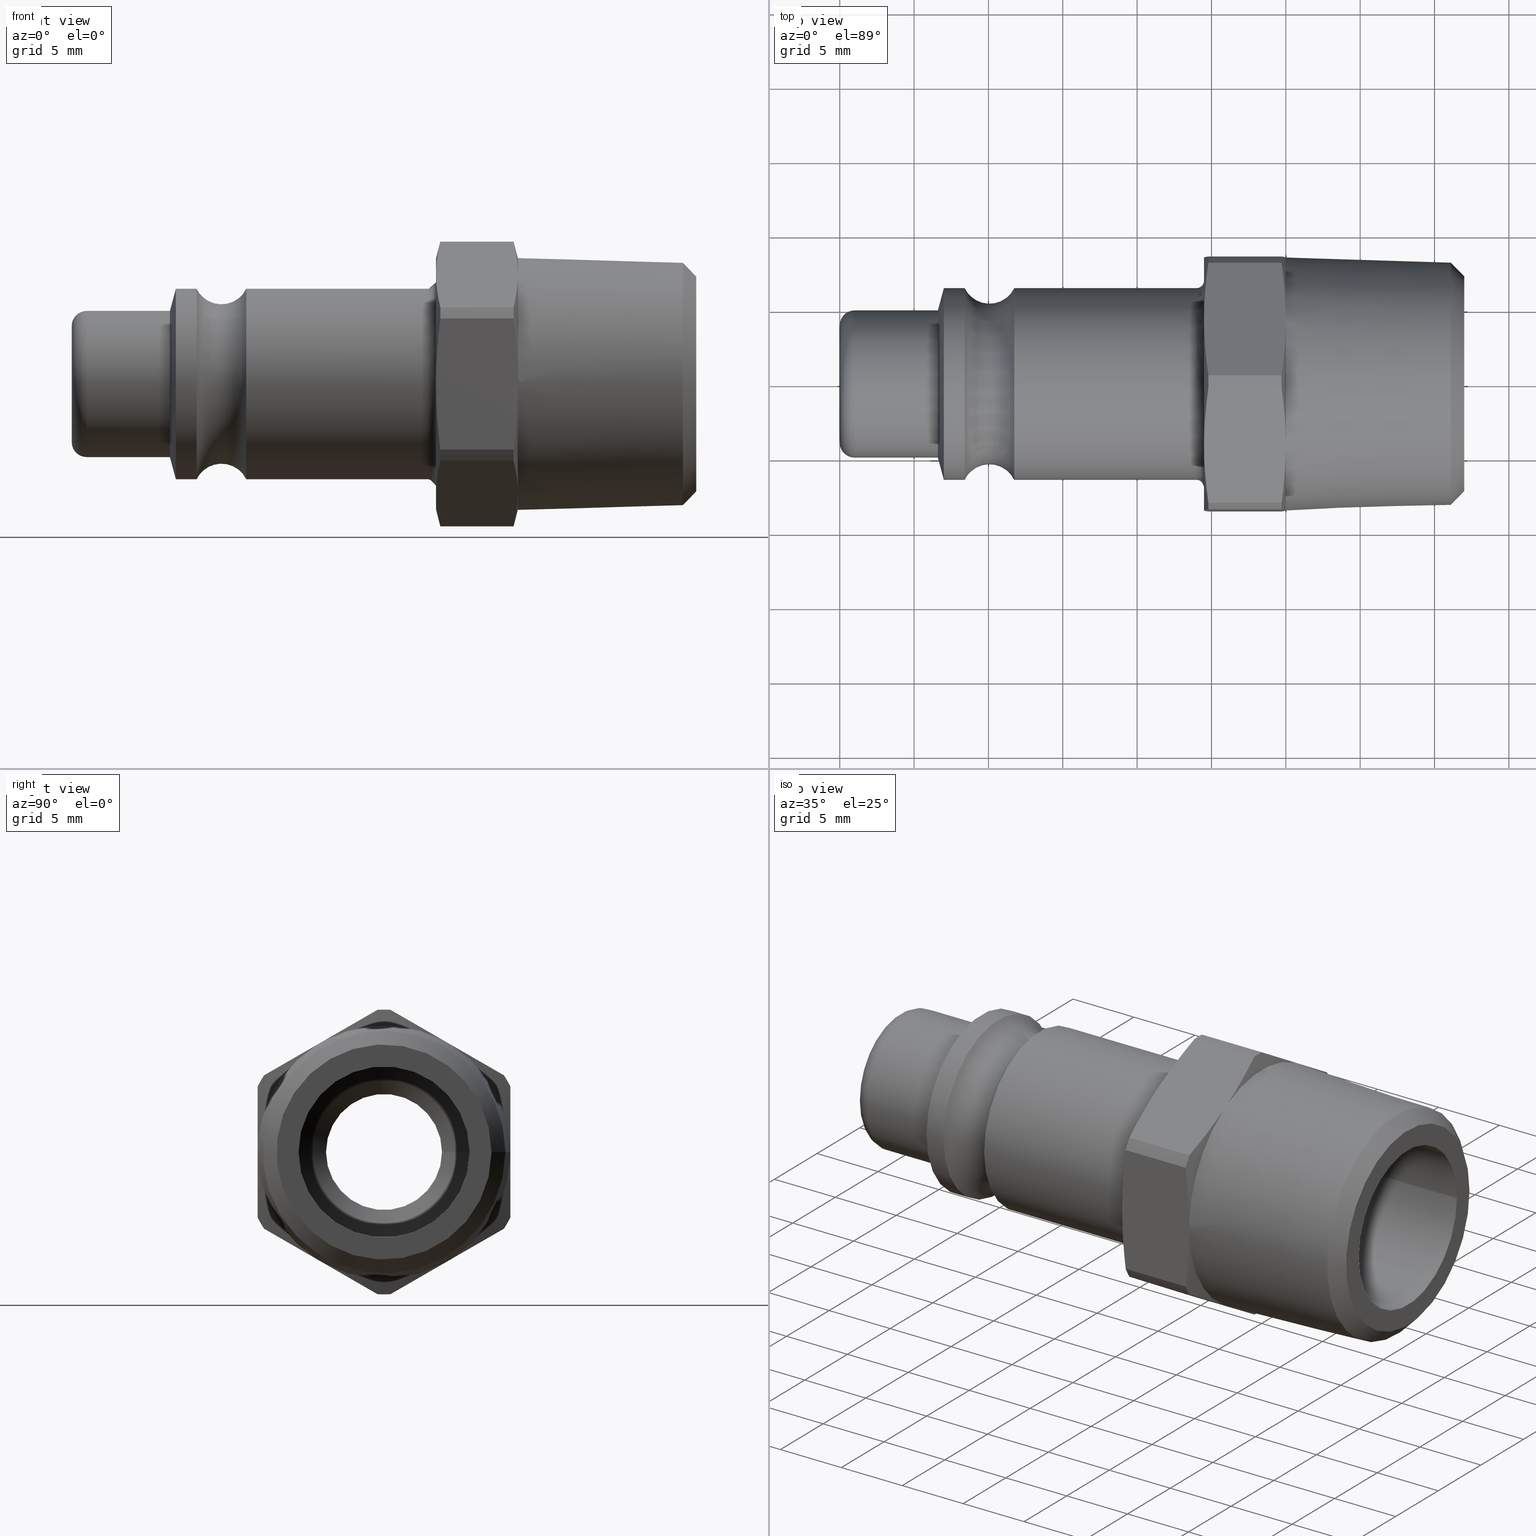
[diagram: canonical four-view strip — front | top / right | iso, engineering-drawing reading convention]
A machine part, canonical four-view strip (front | top / right | iso — engineering-drawing reading convention). The complete STEP part file that produces these views, byte-faithful:
ISO-10303-21;
HEADER;
/****************************************************************
 * Generated by software with PDElib inside                    *
 * PDElib Version v51a, created Wed 11/30/2011                  *
 * ITI Transcendata (http://www.transcendata.com/)              *
 ****************************************************************/
FILE_DESCRIPTION((''),'2;1');
FILE_NAME('J:\\3D Zeichnungen_step\\Serie 33\\33sfak17sxn.stp','2014-06-17T10:28:28',('IA176480'),(''),'Autodesk Inventor 2013','Autodesk Inventor 2013','');
FILE_SCHEMA(('AUTOMOTIVE_DESIGN { 1 0 10303 214 1 1 1 1 }'));
ENDSEC;
DATA;
#5=APPLICATION_CONTEXT('automotive design');
#6=APPLICATION_PROTOCOL_DEFINITION('International Standard','automotive_design',2001,#5);
#7=PRODUCT_CONTEXT('',#5,'mechanical');
#8=PRODUCT('D110730','D110730',$,(#7));
#9=PRODUCT_RELATED_PRODUCT_CATEGORY('part',$,(#8));
#10=PRODUCT_DEFINITION_FORMATION('',$,#8);
#11=PRODUCT_DEFINITION_CONTEXT('part definition',#5,'design');
#12=PRODUCT_DEFINITION('',$,#10,#11);
#18=(NAMED_UNIT(*)PLANE_ANGLE_UNIT()SI_UNIT($,.RADIAN.));
#19=DIMENSIONAL_EXPONENTS(0.0,0.0,0.0,0.0,0.0,0.0,0.0);
#20=PLANE_ANGLE_MEASURE_WITH_UNIT(PLANE_ANGLE_MEASURE(0.0174532925),#18);
#24=(CONVERSION_BASED_UNIT('DEGREE',#20)NAMED_UNIT(#19)PLANE_ANGLE_UNIT());
#28=(NAMED_UNIT(*)SI_UNIT($,.STERADIAN.)SOLID_ANGLE_UNIT());
#32=(LENGTH_UNIT()NAMED_UNIT(*)SI_UNIT(.MILLI.,.METRE.));
#34=UNCERTAINTY_MEASURE_WITH_UNIT(LENGTH_MEASURE(0.01),#32,'DISTANCE_ACCURACY_VALUE','');
#36=(GEOMETRIC_REPRESENTATION_CONTEXT(3)GLOBAL_UNCERTAINTY_ASSIGNED_CONTEXT((#34))GLOBAL_UNIT_ASSIGNED_CONTEXT((#24,#28,#32))REPRESENTATION_CONTEXT('None','None'));
#37=AXIS2_PLACEMENT_3D('',#38,#39,#40);
#38=CARTESIAN_POINT('',(0.0,0.0,0.0));
#39=DIRECTION('',(0.0,0.0,1.0));
#40=DIRECTION('',(1.0,0.0,0.0));
#41=SHAPE_REPRESENTATION('',(#37),#36);
#42=PRODUCT_DEFINITION_SHAPE('','',#12);
#43=SHAPE_DEFINITION_REPRESENTATION(#42,#41);
#49=(NAMED_UNIT(*)PLANE_ANGLE_UNIT()SI_UNIT($,.RADIAN.));
#50=DIMENSIONAL_EXPONENTS(0.0,0.0,0.0,0.0,0.0,0.0,0.0);
#51=PLANE_ANGLE_MEASURE_WITH_UNIT(PLANE_ANGLE_MEASURE(0.0174532925),#49);
#55=(CONVERSION_BASED_UNIT('DEGREE',#51)NAMED_UNIT(#50)PLANE_ANGLE_UNIT());
#59=(NAMED_UNIT(*)SI_UNIT($,.STERADIAN.)SOLID_ANGLE_UNIT());
#63=(LENGTH_UNIT()NAMED_UNIT(*)SI_UNIT(.MILLI.,.METRE.));
#65=UNCERTAINTY_MEASURE_WITH_UNIT(LENGTH_MEASURE(0.000001),#63,'DISTANCE_ACCURACY_VALUE','');
#67=(GEOMETRIC_REPRESENTATION_CONTEXT(3)GLOBAL_UNCERTAINTY_ASSIGNED_CONTEXT((#65))GLOBAL_UNIT_ASSIGNED_CONTEXT((#55,#59,#63))REPRESENTATION_CONTEXT('','3D'));
#68=CARTESIAN_POINT('',(1.0,0.0,0.0));
#69=DIRECTION('',(1.0,0.0,0.0));
#70=DIRECTION('',(0.0,0.0,-1.0));
#71=AXIS2_PLACEMENT_3D('',#68,#69,#70);
#72=TOROIDAL_SURFACE('',#71,3.950000000000001,1.0);
#73=CARTESIAN_POINT('',(-5.551115E-016,3.950000000000001,0.0));
#74=VERTEX_POINT('',#73);
#75=CARTESIAN_POINT('',(-5.551115E-016,0.0,0.0));
#76=DIRECTION('',(1.0,0.0,0.0));
#77=DIRECTION('',(0.0,-1.0,0.0));
#78=AXIS2_PLACEMENT_3D('',#75,#76,#77);
#79=CIRCLE('',#78,3.950000000000001);
#80=EDGE_CURVE('',#74,#74,#79,.T.);
#81=ORIENTED_EDGE('',*,*,#80,.T.);
#82=EDGE_LOOP('',(#81));
#83=FACE_OUTER_BOUND('',#82,.T.);
#84=CARTESIAN_POINT('',(1.0,4.950000000000001,-1.212400E-015));
#85=VERTEX_POINT('',#84);
#86=CARTESIAN_POINT('',(1.0,0.0,0.0));
#87=DIRECTION('',(-1.0,0.0,0.0));
#88=DIRECTION('',(0.0,-1.0,0.0));
#89=AXIS2_PLACEMENT_3D('',#86,#87,#88);
#90=CIRCLE('',#89,4.950000000000001);
#91=EDGE_CURVE('',#85,#85,#90,.T.);
#92=ORIENTED_EDGE('',*,*,#91,.T.);
#93=EDGE_LOOP('',(#92));
#94=FACE_BOUND('',#93,.T.);
#95=ADVANCED_FACE('',(#83,#94),#72,.T.);
#96=CARTESIAN_POINT('',(3.299999999999999,0.0,0.0));
#97=DIRECTION('',(1.0,0.0,0.0));
#98=DIRECTION('',(0.0,1.0,0.0));
#99=AXIS2_PLACEMENT_3D('',#96,#97,#98);
#100=CYLINDRICAL_SURFACE('',#99,4.950000000000001);
#101=CARTESIAN_POINT('',(6.6,4.950000000000002,0.0));
#102=VERTEX_POINT('',#101);
#103=CARTESIAN_POINT('',(6.6,0.0,0.0));
#104=DIRECTION('',(1.0,0.0,0.0));
#105=DIRECTION('',(0.0,1.0,0.0));
#106=AXIS2_PLACEMENT_3D('',#103,#104,#105);
#107=CIRCLE('',#106,4.950000000000002);
#108=EDGE_CURVE('',#102,#102,#107,.T.);
#109=ORIENTED_EDGE('',*,*,#108,.F.);
#110=EDGE_LOOP('',(#109));
#111=FACE_OUTER_BOUND('',#110,.T.);
#112=ORIENTED_EDGE('',*,*,#91,.F.);
#113=EDGE_LOOP('',(#112));
#114=FACE_BOUND('',#113,.T.);
#115=ADVANCED_FACE('',(#111,#114),#100,.T.);
#116=CARTESIAN_POINT('',(-5.551115E-016,4.424999999999998,0.0));
#117=DIRECTION('',(-1.0,0.0,0.0));
#118=DIRECTION('',(0.0,0.0,1.0));
#119=AXIS2_PLACEMENT_3D('',#116,#117,#118);
#120=PLANE('',#119);
#121=ORIENTED_EDGE('',*,*,#80,.F.);
#122=EDGE_LOOP('',(#121));
#123=FACE_OUTER_BOUND('',#122,.T.);
#124=CARTESIAN_POINT('',(0.0,3.899999999999995,0.0));
#125=VERTEX_POINT('',#124);
#126=CARTESIAN_POINT('',(0.0,0.0,0.0));
#127=DIRECTION('',(1.0,0.0,0.0));
#128=DIRECTION('',(0.0,1.0,0.0));
#129=AXIS2_PLACEMENT_3D('',#126,#127,#128);
#130=CIRCLE('',#129,3.899999999999995);
#131=EDGE_CURVE('',#125,#125,#130,.T.);
#132=ORIENTED_EDGE('',*,*,#131,.T.);
#133=EDGE_LOOP('',(#132));
#134=FACE_BOUND('',#133,.T.);
#135=ADVANCED_FACE('',(#123,#134),#120,.T.);
#136=CARTESIAN_POINT('',(24.000000000000004,0.0,0.0));
#137=DIRECTION('',(1.0,0.0,0.0));
#138=DIRECTION('',(0.0,0.0,-1.0));
#139=AXIS2_PLACEMENT_3D('',#136,#137,#138);
#140=TOROIDAL_SURFACE('',#139,6.950000000000001,0.5);
#141=CARTESIAN_POINT('',(24.000000000000004,6.45,0.0));
#142=VERTEX_POINT('',#141);
#143=CARTESIAN_POINT('',(24.000000000000004,0.0,0.0));
#144=DIRECTION('',(1.0,0.0,0.0));
#145=DIRECTION('',(0.0,-1.0,0.0));
#146=AXIS2_PLACEMENT_3D('',#143,#144,#145);
#147=CIRCLE('',#146,6.45);
#148=EDGE_CURVE('',#142,#142,#147,.T.);
#149=ORIENTED_EDGE('',*,*,#148,.T.);
#150=EDGE_LOOP('',(#149));
#151=FACE_OUTER_BOUND('',#150,.T.);
#152=CARTESIAN_POINT('',(24.5,6.950000000000001,-1.702259E-015));
#153=VERTEX_POINT('',#152);
#154=CARTESIAN_POINT('',(24.5,0.0,0.0));
#155=DIRECTION('',(-1.0,0.0,0.0));
#156=DIRECTION('',(0.0,-1.0,0.0));
#157=AXIS2_PLACEMENT_3D('',#154,#155,#156);
#158=CIRCLE('',#157,6.950000000000001);
#159=EDGE_CURVE('',#153,#153,#158,.T.);
#160=ORIENTED_EDGE('',*,*,#159,.T.);
#161=EDGE_LOOP('',(#160));
#162=FACE_BOUND('',#161,.T.);
#163=ADVANCED_FACE('',(#151,#162),#140,.F.);
#164=CARTESIAN_POINT('',(18.118082731761227,0.0,0.0));
#165=DIRECTION('',(1.0,0.0,0.0));
#166=DIRECTION('',(0.0,1.0,0.0));
#167=AXIS2_PLACEMENT_3D('',#164,#165,#166);
#168=CYLINDRICAL_SURFACE('',#167,6.45);
#169=CARTESIAN_POINT('',(11.736165463522454,6.449999999999999,0.0));
#170=VERTEX_POINT('',#169);
#171=CARTESIAN_POINT('',(11.736165463522454,0.0,0.0));
#172=DIRECTION('',(1.0,0.0,0.0));
#173=DIRECTION('',(0.0,1.0,0.0));
#174=AXIS2_PLACEMENT_3D('',#171,#172,#173);
#175=CIRCLE('',#174,6.449999999999999);
#176=EDGE_CURVE('',#170,#170,#175,.T.);
#177=ORIENTED_EDGE('',*,*,#176,.T.);
#178=EDGE_LOOP('',(#177));
#179=FACE_OUTER_BOUND('',#178,.T.);
#180=ORIENTED_EDGE('',*,*,#148,.F.);
#181=EDGE_LOOP('',(#180));
#182=FACE_BOUND('',#181,.T.);
#183=ADVANCED_FACE('',(#179,#182),#168,.T.);
#184=CARTESIAN_POINT('',(24.5,7.475000000000001,0.0));
#185=DIRECTION('',(-1.0,0.0,0.0));
#186=DIRECTION('',(0.0,0.0,1.0));
#187=AXIS2_PLACEMENT_3D('',#184,#185,#186);
#188=PLANE('',#187);
#189=CARTESIAN_POINT('',(24.5,8.5,0.0));
#190=VERTEX_POINT('',#189);
#191=CARTESIAN_POINT('',(24.5,4.250000000000001,7.361215932167728));
#192=VERTEX_POINT('',#191);
#193=CARTESIAN_POINT('',(24.5,0.0,0.0));
#194=DIRECTION('',(1.0,0.0,0.0));
#195=DIRECTION('',(0.0,1.0,0.0));
#196=AXIS2_PLACEMENT_3D('',#193,#194,#195);
#197=CIRCLE('',#196,8.5);
#198=EDGE_CURVE('',#190,#192,#197,.T.);
#199=ORIENTED_EDGE('',*,*,#198,.F.);
#200=CARTESIAN_POINT('',(24.5,4.249999999999994,-7.361215932167733));
#201=VERTEX_POINT('',#200);
#202=CARTESIAN_POINT('',(24.5,0.0,0.0));
#203=DIRECTION('',(1.0,0.0,0.0));
#204=DIRECTION('',(0.0,1.0,0.0));
#205=AXIS2_PLACEMENT_3D('',#202,#203,#204);
#206=CIRCLE('',#205,8.5);
#207=EDGE_CURVE('',#201,#190,#206,.T.);
#208=ORIENTED_EDGE('',*,*,#207,.F.);
#209=CARTESIAN_POINT('',(24.5,-4.250000000000004,-7.361215932167728));
#210=VERTEX_POINT('',#209);
#211=CARTESIAN_POINT('',(24.5,0.0,0.0));
#212=DIRECTION('',(1.0,0.0,0.0));
#213=DIRECTION('',(0.0,1.0,0.0));
#214=AXIS2_PLACEMENT_3D('',#211,#212,#213);
#215=CIRCLE('',#214,8.5);
#216=EDGE_CURVE('',#210,#201,#215,.T.);
#217=ORIENTED_EDGE('',*,*,#216,.F.);
#218=CARTESIAN_POINT('',(24.5,-8.5,1.415534E-015));
#219=VERTEX_POINT('',#218);
#220=CARTESIAN_POINT('',(24.5,0.0,0.0));
#221=DIRECTION('',(1.0,0.0,0.0));
#222=DIRECTION('',(0.0,1.0,0.0));
#223=AXIS2_PLACEMENT_3D('',#220,#221,#222);
#224=CIRCLE('',#223,8.5);
#225=EDGE_CURVE('',#219,#210,#224,.T.);
#226=ORIENTED_EDGE('',*,*,#225,.F.);
#227=CARTESIAN_POINT('',(24.5,-4.249999999999998,7.361215932167731));
#228=VERTEX_POINT('',#227);
#229=CARTESIAN_POINT('',(24.5,0.0,0.0));
#230=DIRECTION('',(1.0,0.0,0.0));
#231=DIRECTION('',(0.0,1.0,0.0));
#232=AXIS2_PLACEMENT_3D('',#229,#230,#231);
#233=CIRCLE('',#232,8.5);
#234=EDGE_CURVE('',#228,#219,#233,.T.);
#235=ORIENTED_EDGE('',*,*,#234,.F.);
#236=CARTESIAN_POINT('',(24.5,0.0,0.0));
#237=DIRECTION('',(1.0,0.0,0.0));
#238=DIRECTION('',(0.0,1.0,0.0));
#239=AXIS2_PLACEMENT_3D('',#236,#237,#238);
#240=CIRCLE('',#239,8.5);
#241=EDGE_CURVE('',#192,#228,#240,.T.);
#242=ORIENTED_EDGE('',*,*,#241,.F.);
#243=EDGE_LOOP('',(#199,#208,#217,#226,#235,#242));
#244=FACE_OUTER_BOUND('',#243,.T.);
#245=ORIENTED_EDGE('',*,*,#159,.F.);
#246=EDGE_LOOP('',(#245));
#247=FACE_BOUND('',#246,.T.);
#248=ADVANCED_FACE('',(#244,#247),#188,.T.);
#249=CARTESIAN_POINT('',(41.550217141247067,0.0,-2.498299E-016));
#250=DIRECTION('',(-1.0,0.0,-5.554456E-016));
#251=DIRECTION('',(0.0,-1.0,0.0));
#252=AXIS2_PLACEMENT_3D('',#249,#250,#251);
#253=CONICAL_SURFACE('',#252,7.696086437542533,45.890000000000065);
#254=CARTESIAN_POINT('',(41.100434282494128,8.160064276146372,9.993197E-016));
#255=VERTEX_POINT('',#254);
#256=CARTESIAN_POINT('',(41.100434282494128,0.0,-4.996598E-016));
#257=DIRECTION('',(1.0,0.0,0.0));
#258=DIRECTION('',(0.0,-1.0,0.0));
#259=AXIS2_PLACEMENT_3D('',#256,#257,#258);
#260=CIRCLE('',#259,8.160064276146372);
#261=EDGE_CURVE('',#255,#255,#260,.T.);
#262=ORIENTED_EDGE('',*,*,#261,.T.);
#263=EDGE_LOOP('',(#262));
#264=FACE_OUTER_BOUND('',#263,.T.);
#265=CARTESIAN_POINT('',(42.0,7.232108598938694,-8.856779E-016));
#266=VERTEX_POINT('',#265);
#267=CARTESIAN_POINT('',(42.0,0.0,0.0));
#268=DIRECTION('',(-1.0,0.0,0.0));
#269=DIRECTION('',(0.0,-1.0,0.0));
#270=AXIS2_PLACEMENT_3D('',#267,#268,#269);
#271=CIRCLE('',#270,7.232108598938694);
#272=EDGE_CURVE('',#266,#266,#271,.T.);
#273=ORIENTED_EDGE('',*,*,#272,.T.);
#274=EDGE_LOOP('',(#273));
#275=FACE_BOUND('',#274,.T.);
#276=ADVANCED_FACE('',(#264,#275),#253,.T.);
#277=CARTESIAN_POINT('',(36.0,0.0,0.0));
#278=DIRECTION('',(-1.0,0.0,0.0));
#279=DIRECTION('',(0.0,1.0,0.0));
#280=AXIS2_PLACEMENT_3D('',#277,#278,#279);
#281=CONICAL_SURFACE('',#280,8.318569754562908,1.779999999999987);
#282=CARTESIAN_POINT('',(30.0,3.996695662435906,-7.507461259647259));
#283=VERTEX_POINT('',#282);
#284=CARTESIAN_POINT('',(30.0,4.503304337564082,-7.214970604688206));
#285=VERTEX_POINT('',#284);
#286=CARTESIAN_POINT('',(30.0,3.996695662435963,-7.507461259647227));
#287=CARTESIAN_POINT('',(30.323676353333006,4.249999999999996,-7.361215932167734));
#288=CARTESIAN_POINT('',(30.0,4.503304337564027,-7.214970604688241));
#296=(BOUNDED_CURVE()B_SPLINE_CURVE(2,(#286,#287,#288),.UNSPECIFIED.,.F.,.U.)B_SPLINE_CURVE_WITH_KNOTS((3,3),(0.0,0.066860415325555),.UNSPECIFIED.)CURVE()GEOMETRIC_REPRESENTATION_ITEM()RATIONAL_B_SPLINE_CURVE((1.0,1.000591871786538,1.0))REPRESENTATION_ITEM(''));
#297=EDGE_CURVE('',#283,#285,#296,.T.);
#298=ORIENTED_EDGE('',*,*,#297,.T.);
#299=CARTESIAN_POINT('',(30.0,8.5,-0.292490654959052));
#300=VERTEX_POINT('',#299);
#301=CARTESIAN_POINT('',(30.0,0.0,0.0));
#302=DIRECTION('',(1.0,0.0,0.0));
#303=DIRECTION('',(0.0,1.0,0.0));
#304=AXIS2_PLACEMENT_3D('',#301,#302,#303);
#305=CIRCLE('',#304,8.505030910187122);
#306=EDGE_CURVE('',#285,#300,#305,.T.);
#307=ORIENTED_EDGE('',*,*,#306,.T.);
#308=CARTESIAN_POINT('',(30.0,8.5,0.292490654959052));
#309=VERTEX_POINT('',#308);
#310=CARTESIAN_POINT('',(30.0,8.5,-0.292490654959026));
#311=CARTESIAN_POINT('',(30.323676353333092,8.5,0.0));
#312=CARTESIAN_POINT('',(30.0,8.5,0.292490654959026));
#320=(BOUNDED_CURVE()B_SPLINE_CURVE(2,(#310,#311,#312),.UNSPECIFIED.,.F.,.U.)B_SPLINE_CURVE_WITH_KNOTS((3,3),(0.0,0.066860415325569),.UNSPECIFIED.)CURVE()GEOMETRIC_REPRESENTATION_ITEM()RATIONAL_B_SPLINE_CURVE((1.0,1.000591871786813,1.0))REPRESENTATION_ITEM(''));
#321=EDGE_CURVE('',#300,#309,#320,.T.);
#322=ORIENTED_EDGE('',*,*,#321,.T.);
#323=CARTESIAN_POINT('',(30.0,4.503304337564089,7.214970604688203));
#324=VERTEX_POINT('',#323);
#325=CARTESIAN_POINT('',(30.0,0.0,0.0));
#326=DIRECTION('',(1.0,0.0,0.0));
#327=DIRECTION('',(0.0,1.0,0.0));
#328=AXIS2_PLACEMENT_3D('',#325,#326,#327);
#329=CIRCLE('',#328,8.505030910187122);
#330=EDGE_CURVE('',#309,#324,#329,.T.);
#331=ORIENTED_EDGE('',*,*,#330,.T.);
#332=CARTESIAN_POINT('',(30.0,3.996695662435914,7.507461259647254));
#333=VERTEX_POINT('',#332);
#334=CARTESIAN_POINT('',(30.0,4.503304337564084,7.214970604688205));
#335=CARTESIAN_POINT('',(30.323676353333134,4.250000000000002,7.361215932167728));
#336=CARTESIAN_POINT('',(30.0,3.996695662435919,7.507461259647251));
#344=(BOUNDED_CURVE()B_SPLINE_CURVE(2,(#334,#335,#336),.UNSPECIFIED.,.F.,.U.)B_SPLINE_CURVE_WITH_KNOTS((3,3),(0.0,0.066860415325572),.UNSPECIFIED.)CURVE()GEOMETRIC_REPRESENTATION_ITEM()RATIONAL_B_SPLINE_CURVE((1.0,1.000591871786565,1.0))REPRESENTATION_ITEM(''));
#345=EDGE_CURVE('',#324,#333,#344,.T.);
#346=ORIENTED_EDGE('',*,*,#345,.T.);
#347=CARTESIAN_POINT('',(30.0,-3.996695662435911,7.507461259647257));
#348=VERTEX_POINT('',#347);
#349=CARTESIAN_POINT('',(30.0,0.0,0.0));
#350=DIRECTION('',(1.0,0.0,0.0));
#351=DIRECTION('',(0.0,1.0,0.0));
#352=AXIS2_PLACEMENT_3D('',#349,#350,#351);
#353=CIRCLE('',#352,8.505030910187122);
#354=EDGE_CURVE('',#333,#348,#353,.T.);
#355=ORIENTED_EDGE('',*,*,#354,.T.);
#356=CARTESIAN_POINT('',(30.0,-4.503304337564086,7.214970604688205));
#357=VERTEX_POINT('',#356);
#358=CARTESIAN_POINT('',(30.0,-3.996695662435934,7.507461259647243));
#359=CARTESIAN_POINT('',(30.323676353333088,-4.25,7.361215932167731));
#360=CARTESIAN_POINT('',(30.0,-4.503304337564065,7.214970604688218));
#368=(BOUNDED_CURVE()B_SPLINE_CURVE(2,(#358,#359,#360),.UNSPECIFIED.,.F.,.U.)B_SPLINE_CURVE_WITH_KNOTS((3,3),(0.0,0.066860415325565),.UNSPECIFIED.)CURVE()GEOMETRIC_REPRESENTATION_ITEM()RATIONAL_B_SPLINE_CURVE((1.0,1.000591871786401,1.0))REPRESENTATION_ITEM(''));
#369=EDGE_CURVE('',#348,#357,#368,.T.);
#370=ORIENTED_EDGE('',*,*,#369,.T.);
#371=CARTESIAN_POINT('',(30.0,-8.5,0.292490654959053));
#372=VERTEX_POINT('',#371);
#373=CARTESIAN_POINT('',(30.0,0.0,0.0));
#374=DIRECTION('',(1.0,0.0,0.0));
#375=DIRECTION('',(0.0,1.0,0.0));
#376=AXIS2_PLACEMENT_3D('',#373,#374,#375);
#377=CIRCLE('',#376,8.505030910187122);
#378=EDGE_CURVE('',#357,#372,#377,.T.);
#379=ORIENTED_EDGE('',*,*,#378,.T.);
#380=CARTESIAN_POINT('',(30.0,-8.5,-0.29249065495905));
#381=VERTEX_POINT('',#380);
#382=CARTESIAN_POINT('',(30.0,-8.5,0.292490654959028));
#383=CARTESIAN_POINT('',(30.323676353333092,-8.5,1.422473E-015));
#384=CARTESIAN_POINT('',(30.0,-8.5,-0.292490654959025));
#392=(BOUNDED_CURVE()B_SPLINE_CURVE(2,(#382,#383,#384),.UNSPECIFIED.,.F.,.U.)B_SPLINE_CURVE_WITH_KNOTS((3,3),(0.0,0.066860415325569),.UNSPECIFIED.)CURVE()GEOMETRIC_REPRESENTATION_ITEM()RATIONAL_B_SPLINE_CURVE((1.0,1.000591871786813,1.0))REPRESENTATION_ITEM(''));
#393=EDGE_CURVE('',#372,#381,#392,.T.);
#394=ORIENTED_EDGE('',*,*,#393,.T.);
#395=CARTESIAN_POINT('',(30.0,-4.503304337564092,-7.214970604688201));
#396=VERTEX_POINT('',#395);
#397=CARTESIAN_POINT('',(30.0,0.0,0.0));
#398=DIRECTION('',(1.0,0.0,0.0));
#399=DIRECTION('',(0.0,1.0,0.0));
#400=AXIS2_PLACEMENT_3D('',#397,#398,#399);
#401=CIRCLE('',#400,8.505030910187122);
#402=EDGE_CURVE('',#381,#396,#401,.T.);
#403=ORIENTED_EDGE('',*,*,#402,.T.);
#404=CARTESIAN_POINT('',(30.0,-3.996695662435917,-7.507461259647253));
#405=VERTEX_POINT('',#404);
#406=CARTESIAN_POINT('',(30.0,-4.50330433756407,-7.214970604688214));
#407=CARTESIAN_POINT('',(30.323676353333088,-4.250000000000005,-7.361215932167728));
#408=CARTESIAN_POINT('',(30.0,-3.996695662435939,-7.50746125964724));
#416=(BOUNDED_CURVE()B_SPLINE_CURVE(2,(#406,#407,#408),.UNSPECIFIED.,.F.,.U.)B_SPLINE_CURVE_WITH_KNOTS((3,3),(0.0,0.066860415325568),.UNSPECIFIED.)CURVE()GEOMETRIC_REPRESENTATION_ITEM()RATIONAL_B_SPLINE_CURVE((1.0,1.00059187178673,1.0))REPRESENTATION_ITEM(''));
#417=EDGE_CURVE('',#396,#405,#416,.T.);
#418=ORIENTED_EDGE('',*,*,#417,.T.);
#419=CARTESIAN_POINT('',(30.0,0.0,0.0));
#420=DIRECTION('',(1.0,0.0,0.0));
#421=DIRECTION('',(0.0,1.0,0.0));
#422=AXIS2_PLACEMENT_3D('',#419,#420,#421);
#423=CIRCLE('',#422,8.505030910187122);
#424=EDGE_CURVE('',#405,#283,#423,.T.);
#425=ORIENTED_EDGE('',*,*,#424,.T.);
#426=EDGE_LOOP('',(#298,#307,#322,#331,#346,#355,#370,#379,#394,#403,#418,#425));
#427=FACE_OUTER_BOUND('',#426,.T.);
#428=ORIENTED_EDGE('',*,*,#261,.F.);
#429=EDGE_LOOP('',(#428));
#430=FACE_BOUND('',#429,.T.);
#431=ADVANCED_FACE('',(#427,#430),#281,.T.);
#432=CARTESIAN_POINT('',(42.0,6.941054299469349,0.0));
#433=DIRECTION('',(1.0,0.0,0.0));
#434=DIRECTION('',(0.0,0.0,-1.0));
#435=AXIS2_PLACEMENT_3D('',#432,#433,#434);
#436=PLANE('',#435);
#437=ORIENTED_EDGE('',*,*,#272,.F.);
#438=EDGE_LOOP('',(#437));
#439=FACE_OUTER_BOUND('',#438,.T.);
#440=CARTESIAN_POINT('',(42.0,5.750000000000003,0.0));
#441=VERTEX_POINT('',#440);
#442=CARTESIAN_POINT('',(42.0,0.0,0.0));
#443=DIRECTION('',(1.0,0.0,0.0));
#444=DIRECTION('',(0.0,1.0,0.0));
#445=AXIS2_PLACEMENT_3D('',#442,#443,#444);
#446=CIRCLE('',#445,5.750000000000003);
#447=EDGE_CURVE('',#441,#441,#446,.T.);
#448=ORIENTED_EDGE('',*,*,#447,.F.);
#449=EDGE_LOOP('',(#448));
#450=FACE_BOUND('',#449,.T.);
#451=ADVANCED_FACE('',(#439,#450),#436,.T.);
#452=CARTESIAN_POINT('',(23.725998680709427,4.249999999999995,-7.361215932167733));
#453=DIRECTION('',(0.0,-0.499999999999999,0.866025403784439));
#454=DIRECTION('',(1.0,0.0,0.0));
#455=AXIS2_PLACEMENT_3D('',#452,#453,#454);
#456=PLANE('',#455);
#457=CARTESIAN_POINT('',(24.788045381863459,8.067455795421862,-5.157206801061425));
#458=VERTEX_POINT('',#457);
#459=CARTESIAN_POINT('',(24.788045381863459,8.067455795421846,-5.157206801061436));
#460=CARTESIAN_POINT('',(24.500000000000007,6.045207427999236,-6.32475244036116));
#461=CARTESIAN_POINT('',(24.500000000000007,4.249999999999994,-7.361215932167734));
#469=(BOUNDED_CURVE()B_SPLINE_CURVE(2,(#459,#460,#461),.UNSPECIFIED.,.F.,.U.)B_SPLINE_CURVE_WITH_KNOTS((3,3),(0.0,0.441955310884669),.UNSPECIFIED.)CURVE()GEOMETRIC_REPRESENTATION_ITEM()RATIONAL_B_SPLINE_CURVE((1.0,1.031133014754965,1.0))REPRESENTATION_ITEM(''));
#470=EDGE_CURVE('',#458,#201,#469,.T.);
#471=ORIENTED_EDGE('',*,*,#470,.F.);
#472=CARTESIAN_POINT('',(29.713302646458377,8.067455795421864,-5.157206801061424));
#473=VERTEX_POINT('',#472);
#474=CARTESIAN_POINT('',(29.713302646458374,8.067455795421862,-5.157206801061425));
#475=DIRECTION('',(-1.0,0.0,0.0));
#476=VECTOR('',#475,4.925257264594915);
#477=LINE('',#474,#476);
#478=EDGE_CURVE('',#473,#458,#477,.T.);
#479=ORIENTED_EDGE('',*,*,#478,.F.);
#480=CARTESIAN_POINT('',(30.0,4.503304337564046,-7.214970604688229));
#481=CARTESIAN_POINT('',(29.982160166443666,6.179917528561911,-6.246977527538737));
#482=CARTESIAN_POINT('',(29.713302646458377,8.067455795421859,-5.157206801061428));
#490=(BOUNDED_CURVE()B_SPLINE_CURVE(2,(#480,#481,#482),.UNSPECIFIED.,.F.,.U.)B_SPLINE_CURVE_WITH_KNOTS((3,3),(0.0,0.412719892440435),.UNSPECIFIED.)CURVE()GEOMETRIC_REPRESENTATION_ITEM()RATIONAL_B_SPLINE_CURVE((1.0,1.026959657015917,1.0))REPRESENTATION_ITEM(''));
#491=EDGE_CURVE('',#285,#473,#490,.T.);
#492=ORIENTED_EDGE('',*,*,#491,.F.);
#493=ORIENTED_EDGE('',*,*,#297,.F.);
#494=CARTESIAN_POINT('',(29.713302646458377,0.432544204578123,-9.565225063274042));
#495=VERTEX_POINT('',#494);
#496=CARTESIAN_POINT('',(29.713302646458377,0.432544204578129,-9.565225063274042));
#497=CARTESIAN_POINT('',(29.982160166443666,2.320082471438075,-8.475454336796734));
#498=CARTESIAN_POINT('',(30.0,3.996695662435942,-7.507461259647239));
#506=(BOUNDED_CURVE()B_SPLINE_CURVE(2,(#496,#497,#498),.UNSPECIFIED.,.F.,.U.)B_SPLINE_CURVE_WITH_KNOTS((3,3),(0.0,0.412719892440435),.UNSPECIFIED.)CURVE()GEOMETRIC_REPRESENTATION_ITEM()RATIONAL_B_SPLINE_CURVE((1.0,1.026959657015903,1.0))REPRESENTATION_ITEM(''));
#507=EDGE_CURVE('',#495,#283,#506,.T.);
#508=ORIENTED_EDGE('',*,*,#507,.F.);
#509=CARTESIAN_POINT('',(24.788045381863459,0.432544204578125,-9.565225063274042));
#510=VERTEX_POINT('',#509);
#511=CARTESIAN_POINT('',(24.788045381863459,0.432544204578125,-9.565225063274042));
#512=DIRECTION('',(1.0,0.0,0.0));
#513=VECTOR('',#512,4.925257264594915);
#514=LINE('',#511,#513);
#515=EDGE_CURVE('',#510,#495,#514,.T.);
#516=ORIENTED_EDGE('',*,*,#515,.F.);
#517=CARTESIAN_POINT('',(24.500000000000007,4.249999999999994,-7.361215932167734));
#518=CARTESIAN_POINT('',(24.500000000000007,2.454792572000755,-8.397679423974308));
#519=CARTESIAN_POINT('',(24.788045381863459,0.432544204578144,-9.565225063274031));
#527=(BOUNDED_CURVE()B_SPLINE_CURVE(2,(#517,#518,#519),.UNSPECIFIED.,.F.,.U.)B_SPLINE_CURVE_WITH_KNOTS((3,3),(0.441955310884669,0.883910621769338),.UNSPECIFIED.)CURVE()GEOMETRIC_REPRESENTATION_ITEM()RATIONAL_B_SPLINE_CURVE((1.0,1.031133014754977,1.0))REPRESENTATION_ITEM(''));
#528=EDGE_CURVE('',#201,#510,#527,.T.);
#529=ORIENTED_EDGE('',*,*,#528,.F.);
#530=EDGE_LOOP('',(#471,#479,#492,#493,#508,#516,#529));
#531=FACE_OUTER_BOUND('',#530,.T.);
#532=ADVANCED_FACE('',(#531),#456,.F.);
#533=CARTESIAN_POINT('',(23.725998680709427,-4.250000000000004,-7.361215932167728));
#534=DIRECTION('',(0.0,0.5,0.866025403784438));
#535=DIRECTION('',(1.0,0.0,0.0));
#536=AXIS2_PLACEMENT_3D('',#533,#534,#535);
#537=PLANE('',#536);
#538=CARTESIAN_POINT('',(24.788045381863459,-0.432544204578139,-9.565225063274042));
#539=VERTEX_POINT('',#538);
#540=CARTESIAN_POINT('',(24.788045381863459,-0.432544204578157,-9.565225063274031));
#541=CARTESIAN_POINT('',(24.500000000000007,-2.454792572000798,-8.397679423974287));
#542=CARTESIAN_POINT('',(24.5,-4.250000000000005,-7.361215932167728));
#550=(BOUNDED_CURVE()B_SPLINE_CURVE(2,(#540,#541,#542),.UNSPECIFIED.,.F.,.U.)B_SPLINE_CURVE_WITH_KNOTS((3,3),(0.0,0.441955310884669),.UNSPECIFIED.)CURVE()GEOMETRIC_REPRESENTATION_ITEM()RATIONAL_B_SPLINE_CURVE((1.0,1.031133014754979,1.0))REPRESENTATION_ITEM(''));
#551=EDGE_CURVE('',#539,#210,#550,.T.);
#552=ORIENTED_EDGE('',*,*,#551,.F.);
#553=CARTESIAN_POINT('',(29.713302646458377,-0.432544204578137,-9.565225063274042));
#554=VERTEX_POINT('',#553);
#555=CARTESIAN_POINT('',(29.713302646458374,-0.432544204578139,-9.565225063274042));
#556=DIRECTION('',(-1.0,0.0,0.0));
#557=VECTOR('',#556,4.925257264594915);
#558=LINE('',#555,#557);
#559=EDGE_CURVE('',#554,#539,#558,.T.);
#560=ORIENTED_EDGE('',*,*,#559,.F.);
#561=CARTESIAN_POINT('',(30.0,-3.99669566243591,-7.507461259647258));
#562=CARTESIAN_POINT('',(29.982160166443666,-2.320082471438058,-8.475454336796746));
#563=CARTESIAN_POINT('',(29.713302646458377,-0.432544204578135,-9.565225063274044));
#571=(BOUNDED_CURVE()B_SPLINE_CURVE(2,(#561,#562,#563),.UNSPECIFIED.,.F.,.U.)B_SPLINE_CURVE_WITH_KNOTS((3,3),(0.0,0.412719892440431),.UNSPECIFIED.)CURVE()GEOMETRIC_REPRESENTATION_ITEM()RATIONAL_B_SPLINE_CURVE((1.0,1.026959657015786,1.0))REPRESENTATION_ITEM(''));
#572=EDGE_CURVE('',#405,#554,#571,.T.);
#573=ORIENTED_EDGE('',*,*,#572,.F.);
#574=ORIENTED_EDGE('',*,*,#417,.F.);
#575=CARTESIAN_POINT('',(29.713302646458377,-8.067455795421871,-5.157206801061412));
#576=VERTEX_POINT('',#575);
#577=CARTESIAN_POINT('',(29.713302646458377,-8.067455795421873,-5.157206801061411));
#578=CARTESIAN_POINT('',(29.982160166443666,-6.179917528561951,-6.246977527538709));
#579=CARTESIAN_POINT('',(30.0,-4.5033043375641,-7.214970604688197));
#587=(BOUNDED_CURVE()B_SPLINE_CURVE(2,(#577,#578,#579),.UNSPECIFIED.,.F.,.U.)B_SPLINE_CURVE_WITH_KNOTS((3,3),(0.0,0.412719892440431),.UNSPECIFIED.)CURVE()GEOMETRIC_REPRESENTATION_ITEM()RATIONAL_B_SPLINE_CURVE((1.0,1.026959657015806,1.0))REPRESENTATION_ITEM(''));
#588=EDGE_CURVE('',#576,#396,#587,.T.);
#589=ORIENTED_EDGE('',*,*,#588,.F.);
#590=CARTESIAN_POINT('',(24.788045381863459,-8.06745579542187,-5.157206801061413));
#591=VERTEX_POINT('',#590);
#592=CARTESIAN_POINT('',(24.788045381863459,-8.06745579542187,-5.157206801061413));
#593=DIRECTION('',(1.0,0.0,0.0));
#594=VECTOR('',#593,4.925257264594915);
#595=LINE('',#592,#594);
#596=EDGE_CURVE('',#591,#576,#595,.T.);
#597=ORIENTED_EDGE('',*,*,#596,.F.);
#598=CARTESIAN_POINT('',(24.5,-4.250000000000005,-7.361215932167728));
#599=CARTESIAN_POINT('',(24.500000000000007,-6.045207427999213,-6.324752440361168));
#600=CARTESIAN_POINT('',(24.788045381863459,-8.067455795421854,-5.157206801061424));
#608=(BOUNDED_CURVE()B_SPLINE_CURVE(2,(#598,#599,#600),.UNSPECIFIED.,.F.,.U.)B_SPLINE_CURVE_WITH_KNOTS((3,3),(0.441955310884669,0.883910621769338),.UNSPECIFIED.)CURVE()GEOMETRIC_REPRESENTATION_ITEM()RATIONAL_B_SPLINE_CURVE((1.0,1.031133014754982,1.0))REPRESENTATION_ITEM(''));
#609=EDGE_CURVE('',#210,#591,#608,.T.);
#610=ORIENTED_EDGE('',*,*,#609,.F.);
#611=EDGE_LOOP('',(#552,#560,#573,#574,#589,#597,#610));
#612=FACE_OUTER_BOUND('',#611,.T.);
#613=ADVANCED_FACE('',(#612),#537,.F.);
#614=CARTESIAN_POINT('',(23.725998680709427,-8.5,1.110223E-015));
#615=DIRECTION('',(0.0,1.0,0.0));
#616=DIRECTION('',(1.0,0.0,0.0));
#617=AXIS2_PLACEMENT_3D('',#614,#615,#616);
#618=PLANE('',#617);
#619=CARTESIAN_POINT('',(24.788045381863459,-8.500000000000002,-4.408018262212622));
#620=VERTEX_POINT('',#619);
#621=CARTESIAN_POINT('',(24.788045381863459,-8.500000000000002,-4.408018262212601));
#622=CARTESIAN_POINT('',(24.500000000000007,-8.5,-2.072926983613137));
#623=CARTESIAN_POINT('',(24.5,-8.5,1.415534E-015));
#631=(BOUNDED_CURVE()B_SPLINE_CURVE(2,(#621,#622,#623),.UNSPECIFIED.,.F.,.U.)B_SPLINE_CURVE_WITH_KNOTS((3,3),(0.0,0.441955310884669),.UNSPECIFIED.)CURVE()GEOMETRIC_REPRESENTATION_ITEM()RATIONAL_B_SPLINE_CURVE((1.0,1.031133014754979,1.0))REPRESENTATION_ITEM(''));
#632=EDGE_CURVE('',#620,#219,#631,.T.);
#633=ORIENTED_EDGE('',*,*,#632,.F.);
#634=CARTESIAN_POINT('',(29.713302646458377,-8.500000000000002,-4.408018262212623));
#635=VERTEX_POINT('',#634);
#636=CARTESIAN_POINT('',(29.713302646458374,-8.500000000000002,-4.408018262212622));
#637=DIRECTION('',(-1.0,0.0,0.0));
#638=VECTOR('',#637,4.925257264594915);
#639=LINE('',#636,#638);
#640=EDGE_CURVE('',#635,#620,#639,.T.);
#641=ORIENTED_EDGE('',*,*,#640,.F.);
#642=CARTESIAN_POINT('',(30.0,-8.5,-0.292490654959026));
#643=CARTESIAN_POINT('',(29.982160166443666,-8.5,-2.228476809258019));
#644=CARTESIAN_POINT('',(29.713302646458377,-8.500000000000002,-4.408018262212626));
#652=(BOUNDED_CURVE()B_SPLINE_CURVE(2,(#642,#643,#644),.UNSPECIFIED.,.F.,.U.)B_SPLINE_CURVE_WITH_KNOTS((3,3),(0.0,0.412719892440435),.UNSPECIFIED.)CURVE()GEOMETRIC_REPRESENTATION_ITEM()RATIONAL_B_SPLINE_CURVE((1.0,1.026959657015894,1.0))REPRESENTATION_ITEM(''));
#653=EDGE_CURVE('',#381,#635,#652,.T.);
#654=ORIENTED_EDGE('',*,*,#653,.F.);
#655=ORIENTED_EDGE('',*,*,#393,.F.);
#656=CARTESIAN_POINT('',(29.713302646458377,-8.5,4.408018262212627));
#657=VERTEX_POINT('',#656);
#658=CARTESIAN_POINT('',(29.713302646458377,-8.5,4.408018262212629));
#659=CARTESIAN_POINT('',(29.982160166443666,-8.5,2.228476809258022));
#660=CARTESIAN_POINT('',(30.0,-8.5,0.292490654959029));
#668=(BOUNDED_CURVE()B_SPLINE_CURVE(2,(#658,#659,#660),.UNSPECIFIED.,.F.,.U.)B_SPLINE_CURVE_WITH_KNOTS((3,3),(0.0,0.412719892440435),.UNSPECIFIED.)CURVE()GEOMETRIC_REPRESENTATION_ITEM()RATIONAL_B_SPLINE_CURVE((1.0,1.026959657015883,1.0))REPRESENTATION_ITEM(''));
#669=EDGE_CURVE('',#657,#372,#668,.T.);
#670=ORIENTED_EDGE('',*,*,#669,.F.);
#671=CARTESIAN_POINT('',(24.788045381863459,-8.5,4.408018262212624));
#672=VERTEX_POINT('',#671);
#673=CARTESIAN_POINT('',(24.788045381863459,-8.5,4.408018262212624));
#674=DIRECTION('',(1.0,0.0,0.0));
#675=VECTOR('',#674,4.925257264594915);
#676=LINE('',#673,#675);
#677=EDGE_CURVE('',#672,#657,#676,.T.);
#678=ORIENTED_EDGE('',*,*,#677,.F.);
#679=CARTESIAN_POINT('',(24.5,-8.5,1.415534E-015));
#680=CARTESIAN_POINT('',(24.500000000000007,-8.5,2.07292698361314));
#681=CARTESIAN_POINT('',(24.788045381863459,-8.5,4.408018262212604));
#689=(BOUNDED_CURVE()B_SPLINE_CURVE(2,(#679,#680,#681),.UNSPECIFIED.,.F.,.U.)B_SPLINE_CURVE_WITH_KNOTS((3,3),(0.441955310884669,0.883910621769338),.UNSPECIFIED.)CURVE()GEOMETRIC_REPRESENTATION_ITEM()RATIONAL_B_SPLINE_CURVE((1.0,1.031133014754976,1.0))REPRESENTATION_ITEM(''));
#690=EDGE_CURVE('',#219,#672,#689,.T.);
#691=ORIENTED_EDGE('',*,*,#690,.F.);
#692=EDGE_LOOP('',(#633,#641,#654,#655,#670,#678,#691));
#693=FACE_OUTER_BOUND('',#692,.T.);
#694=ADVANCED_FACE('',(#693),#618,.F.);
#695=CARTESIAN_POINT('',(23.725998680709427,-4.249999999999998,7.361215932167731));
#696=DIRECTION('',(0.0,0.5,-0.866025403784439));
#697=DIRECTION('',(1.0,0.0,0.0));
#698=AXIS2_PLACEMENT_3D('',#695,#696,#697);
#699=PLANE('',#698);
#700=CARTESIAN_POINT('',(24.788045381863459,-8.067455795421864,5.15720680106142));
#701=VERTEX_POINT('',#700);
#702=CARTESIAN_POINT('',(24.788045381863459,-8.067455795421846,5.15720680106143));
#703=CARTESIAN_POINT('',(24.500000000000007,-6.045207427999245,6.324752440361152));
#704=CARTESIAN_POINT('',(24.500000000000007,-4.249999999999998,7.361215932167731));
#712=(BOUNDED_CURVE()B_SPLINE_CURVE(2,(#702,#703,#704),.UNSPECIFIED.,.F.,.U.)B_SPLINE_CURVE_WITH_KNOTS((3,3),(0.0,0.441955310884669),.UNSPECIFIED.)CURVE()GEOMETRIC_REPRESENTATION_ITEM()RATIONAL_B_SPLINE_CURVE((1.0,1.03113301475497,1.0))REPRESENTATION_ITEM(''));
#713=EDGE_CURVE('',#701,#228,#712,.T.);
#714=ORIENTED_EDGE('',*,*,#713,.F.);
#715=CARTESIAN_POINT('',(29.713302646458377,-8.067455795421868,5.157206801061419));
#716=VERTEX_POINT('',#715);
#717=CARTESIAN_POINT('',(29.713302646458374,-8.067455795421864,5.15720680106142));
#718=DIRECTION('',(-1.0,0.0,0.0));
#719=VECTOR('',#718,4.925257264594915);
#720=LINE('',#717,#719);
#721=EDGE_CURVE('',#716,#701,#720,.T.);
#722=ORIENTED_EDGE('',*,*,#721,.F.);
#723=CARTESIAN_POINT('',(30.0,-4.503304337564066,7.214970604688217));
#724=CARTESIAN_POINT('',(29.982160166443666,-6.179917528561929,6.246977527538723));
#725=CARTESIAN_POINT('',(29.713302646458377,-8.06745579542187,5.157206801061419));
#733=(BOUNDED_CURVE()B_SPLINE_CURVE(2,(#723,#724,#725),.UNSPECIFIED.,.F.,.U.)B_SPLINE_CURVE_WITH_KNOTS((3,3),(0.0,0.412719892440434),.UNSPECIFIED.)CURVE()GEOMETRIC_REPRESENTATION_ITEM()RATIONAL_B_SPLINE_CURVE((1.0,1.026959657015884,1.0))REPRESENTATION_ITEM(''));
#734=EDGE_CURVE('',#357,#716,#733,.T.);
#735=ORIENTED_EDGE('',*,*,#734,.F.);
#736=ORIENTED_EDGE('',*,*,#369,.F.);
#737=CARTESIAN_POINT('',(29.713302646458377,-0.432544204578129,9.565225063274042));
#738=VERTEX_POINT('',#737);
#739=CARTESIAN_POINT('',(29.713302646458377,-0.432544204578128,9.565225063274044));
#740=CARTESIAN_POINT('',(29.982160166443666,-2.320082471438069,8.475454336796737));
#741=CARTESIAN_POINT('',(30.0,-3.996695662435932,7.507461259647244));
#749=(BOUNDED_CURVE()B_SPLINE_CURVE(2,(#739,#740,#741),.UNSPECIFIED.,.F.,.U.)B_SPLINE_CURVE_WITH_KNOTS((3,3),(0.0,0.412719892440434),.UNSPECIFIED.)CURVE()GEOMETRIC_REPRESENTATION_ITEM()RATIONAL_B_SPLINE_CURVE((1.0,1.026959657015882,1.0))REPRESENTATION_ITEM(''));
#750=EDGE_CURVE('',#738,#348,#749,.T.);
#751=ORIENTED_EDGE('',*,*,#750,.F.);
#752=CARTESIAN_POINT('',(24.788045381863459,-0.432544204578131,9.565225063274042));
#753=VERTEX_POINT('',#752);
#754=CARTESIAN_POINT('',(24.788045381863459,-0.432544204578131,9.565225063274042));
#755=DIRECTION('',(1.0,0.0,0.0));
#756=VECTOR('',#755,4.925257264594915);
#757=LINE('',#754,#756);
#758=EDGE_CURVE('',#753,#738,#757,.T.);
#759=ORIENTED_EDGE('',*,*,#758,.F.);
#760=CARTESIAN_POINT('',(24.500000000000007,-4.249999999999998,7.361215932167731));
#761=CARTESIAN_POINT('',(24.500000000000007,-2.454792572000752,8.39767942397431));
#762=CARTESIAN_POINT('',(24.788045381863459,-0.432544204578148,9.565225063274031));
#770=(BOUNDED_CURVE()B_SPLINE_CURVE(2,(#760,#761,#762),.UNSPECIFIED.,.F.,.U.)B_SPLINE_CURVE_WITH_KNOTS((3,3),(0.441955310884669,0.883910621769338),.UNSPECIFIED.)CURVE()GEOMETRIC_REPRESENTATION_ITEM()RATIONAL_B_SPLINE_CURVE((1.0,1.031133014754964,1.0))REPRESENTATION_ITEM(''));
#771=EDGE_CURVE('',#228,#753,#770,.T.);
#772=ORIENTED_EDGE('',*,*,#771,.F.);
#773=EDGE_LOOP('',(#714,#722,#735,#736,#751,#759,#772));
#774=FACE_OUTER_BOUND('',#773,.T.);
#775=ADVANCED_FACE('',(#774),#699,.F.);
#776=CARTESIAN_POINT('',(23.725998680709427,4.250000000000002,7.361215932167728));
#777=DIRECTION('',(0.0,-0.5,-0.866025403784439));
#778=DIRECTION('',(1.0,0.0,0.0));
#779=AXIS2_PLACEMENT_3D('',#776,#777,#778);
#780=PLANE('',#779);
#781=CARTESIAN_POINT('',(24.788045381863459,0.432544204578135,9.565225063274042));
#782=VERTEX_POINT('',#781);
#783=CARTESIAN_POINT('',(24.788045381863459,0.43254420457815,9.565225063274031));
#784=CARTESIAN_POINT('',(24.500000000000007,2.454792572000792,8.397679423974289));
#785=CARTESIAN_POINT('',(24.5,4.250000000000002,7.361215932167728));
#793=(BOUNDED_CURVE()B_SPLINE_CURVE(2,(#783,#784,#785),.UNSPECIFIED.,.F.,.U.)B_SPLINE_CURVE_WITH_KNOTS((3,3),(0.0,0.441955310884669),.UNSPECIFIED.)CURVE()GEOMETRIC_REPRESENTATION_ITEM()RATIONAL_B_SPLINE_CURVE((1.0,1.031133014754986,1.0))REPRESENTATION_ITEM(''));
#794=EDGE_CURVE('',#782,#192,#793,.T.);
#795=ORIENTED_EDGE('',*,*,#794,.F.);
#796=CARTESIAN_POINT('',(29.713302646458377,0.432544204578133,9.565225063274042));
#797=VERTEX_POINT('',#796);
#798=CARTESIAN_POINT('',(29.713302646458374,0.432544204578135,9.565225063274042));
#799=DIRECTION('',(-1.0,0.0,0.0));
#800=VECTOR('',#799,4.925257264594915);
#801=LINE('',#798,#800);
#802=EDGE_CURVE('',#797,#782,#801,.T.);
#803=ORIENTED_EDGE('',*,*,#802,.F.);
#804=CARTESIAN_POINT('',(30.0,3.996695662435906,7.507461259647259));
#805=CARTESIAN_POINT('',(29.982160166443666,2.320082471438056,8.475454336796744));
#806=CARTESIAN_POINT('',(29.713302646458377,0.432544204578132,9.565225063274042));
#814=(BOUNDED_CURVE()B_SPLINE_CURVE(2,(#804,#805,#806),.UNSPECIFIED.,.F.,.U.)B_SPLINE_CURVE_WITH_KNOTS((3,3),(0.0,0.412719892440431),.UNSPECIFIED.)CURVE()GEOMETRIC_REPRESENTATION_ITEM()RATIONAL_B_SPLINE_CURVE((1.0,1.02695965701581,1.0))REPRESENTATION_ITEM(''));
#815=EDGE_CURVE('',#333,#797,#814,.T.);
#816=ORIENTED_EDGE('',*,*,#815,.F.);
#817=ORIENTED_EDGE('',*,*,#345,.F.);
#818=CARTESIAN_POINT('',(29.713302646458377,8.06745579542187,5.157206801061416));
#819=VERTEX_POINT('',#818);
#820=CARTESIAN_POINT('',(29.713302646458377,8.067455795421871,5.157206801061415));
#821=CARTESIAN_POINT('',(29.982160166443666,6.179917528561946,6.246977527538712));
#822=CARTESIAN_POINT('',(30.0,4.503304337564098,7.214970604688197));
#830=(BOUNDED_CURVE()B_SPLINE_CURVE(2,(#820,#821,#822),.UNSPECIFIED.,.F.,.U.)B_SPLINE_CURVE_WITH_KNOTS((3,3),(0.0,0.412719892440431),.UNSPECIFIED.)CURVE()GEOMETRIC_REPRESENTATION_ITEM()RATIONAL_B_SPLINE_CURVE((1.0,1.026959657015809,1.0))REPRESENTATION_ITEM(''));
#831=EDGE_CURVE('',#819,#324,#830,.T.);
#832=ORIENTED_EDGE('',*,*,#831,.F.);
#833=CARTESIAN_POINT('',(24.788045381863459,8.067455795421868,5.157206801061416));
#834=VERTEX_POINT('',#833);
#835=CARTESIAN_POINT('',(24.788045381863459,8.067455795421868,5.157206801061416));
#836=DIRECTION('',(1.0,0.0,0.0));
#837=VECTOR('',#836,4.925257264594915);
#838=LINE('',#835,#837);
#839=EDGE_CURVE('',#834,#819,#838,.T.);
#840=ORIENTED_EDGE('',*,*,#839,.F.);
#841=CARTESIAN_POINT('',(24.5,4.250000000000002,7.361215932167728));
#842=CARTESIAN_POINT('',(24.500000000000007,6.04520742799921,6.324752440361169));
#843=CARTESIAN_POINT('',(24.788045381863459,8.067455795421854,5.157206801061425));
#851=(BOUNDED_CURVE()B_SPLINE_CURVE(2,(#841,#842,#843),.UNSPECIFIED.,.F.,.U.)B_SPLINE_CURVE_WITH_KNOTS((3,3),(0.441955310884669,0.883910621769338),.UNSPECIFIED.)CURVE()GEOMETRIC_REPRESENTATION_ITEM()RATIONAL_B_SPLINE_CURVE((1.0,1.03113301475499,1.0))REPRESENTATION_ITEM(''));
#852=EDGE_CURVE('',#192,#834,#851,.T.);
#853=ORIENTED_EDGE('',*,*,#852,.F.);
#854=EDGE_LOOP('',(#795,#803,#816,#817,#832,#840,#853));
#855=FACE_OUTER_BOUND('',#854,.T.);
#856=ADVANCED_FACE('',(#855),#780,.F.);
#857=CARTESIAN_POINT('',(29.856651323229187,0.0,0.0));
#858=DIRECTION('',(-1.0,0.0,0.0));
#859=DIRECTION('',(0.0,1.0,0.0));
#860=AXIS2_PLACEMENT_3D('',#857,#858,#859);
#861=CONICAL_SURFACE('',#860,9.040015455093561,75.000000000000085);
#862=ORIENTED_EDGE('',*,*,#491,.T.);
#863=CARTESIAN_POINT('',(29.713302646458377,8.5,-4.408018262212625));
#864=VERTEX_POINT('',#863);
#865=CARTESIAN_POINT('',(29.713302646458377,0.0,0.0));
#866=DIRECTION('',(1.0,0.0,0.0));
#867=DIRECTION('',(0.0,1.0,0.0));
#868=AXIS2_PLACEMENT_3D('',#865,#866,#867);
#869=CIRCLE('',#868,9.575000000000001);
#870=EDGE_CURVE('',#473,#864,#869,.T.);
#871=ORIENTED_EDGE('',*,*,#870,.T.);
#872=CARTESIAN_POINT('',(29.713302646458377,8.5,-4.408018262212628));
#873=CARTESIAN_POINT('',(29.982160166443666,8.5,-2.228476809258021));
#874=CARTESIAN_POINT('',(30.0,8.5,-0.292490654959027));
#882=(BOUNDED_CURVE()B_SPLINE_CURVE(2,(#872,#873,#874),.UNSPECIFIED.,.F.,.U.)B_SPLINE_CURVE_WITH_KNOTS((3,3),(0.0,0.412719892440435),.UNSPECIFIED.)CURVE()GEOMETRIC_REPRESENTATION_ITEM()RATIONAL_B_SPLINE_CURVE((1.0,1.026959657015888,1.0))REPRESENTATION_ITEM(''));
#883=EDGE_CURVE('',#864,#300,#882,.T.);
#884=ORIENTED_EDGE('',*,*,#883,.T.);
#885=ORIENTED_EDGE('',*,*,#306,.F.);
#886=EDGE_LOOP('',(#862,#871,#884,#885));
#887=FACE_OUTER_BOUND('',#886,.T.);
#888=ADVANCED_FACE('',(#887),#861,.T.);
#889=CARTESIAN_POINT('',(29.856651323229187,0.0,0.0));
#890=DIRECTION('',(-1.0,0.0,0.0));
#891=DIRECTION('',(0.0,1.0,0.0));
#892=AXIS2_PLACEMENT_3D('',#889,#890,#891);
#893=CONICAL_SURFACE('',#892,9.040015455093561,75.000000000000085);
#894=ORIENTED_EDGE('',*,*,#831,.T.);
#895=ORIENTED_EDGE('',*,*,#330,.F.);
#896=CARTESIAN_POINT('',(29.713302646458377,8.5,4.408018262212625));
#897=VERTEX_POINT('',#896);
#898=CARTESIAN_POINT('',(30.0,8.5,0.292490654959027));
#899=CARTESIAN_POINT('',(29.982160166443666,8.5,2.228476809258021));
#900=CARTESIAN_POINT('',(29.713302646458377,8.5,4.408018262212628));
#908=(BOUNDED_CURVE()B_SPLINE_CURVE(2,(#898,#899,#900),.UNSPECIFIED.,.F.,.U.)B_SPLINE_CURVE_WITH_KNOTS((3,3),(0.0,0.412719892440435),.UNSPECIFIED.)CURVE()GEOMETRIC_REPRESENTATION_ITEM()RATIONAL_B_SPLINE_CURVE((1.0,1.026959657015888,1.0))REPRESENTATION_ITEM(''));
#909=EDGE_CURVE('',#309,#897,#908,.T.);
#910=ORIENTED_EDGE('',*,*,#909,.T.);
#911=CARTESIAN_POINT('',(29.713302646458377,0.0,0.0));
#912=DIRECTION('',(1.0,0.0,0.0));
#913=DIRECTION('',(0.0,1.0,0.0));
#914=AXIS2_PLACEMENT_3D('',#911,#912,#913);
#915=CIRCLE('',#914,9.575000000000001);
#916=EDGE_CURVE('',#897,#819,#915,.T.);
#917=ORIENTED_EDGE('',*,*,#916,.T.);
#918=EDGE_LOOP('',(#894,#895,#910,#917));
#919=FACE_OUTER_BOUND('',#918,.T.);
#920=ADVANCED_FACE('',(#919),#893,.T.);
#921=CARTESIAN_POINT('',(29.856651323229187,0.0,0.0));
#922=DIRECTION('',(-1.0,0.0,0.0));
#923=DIRECTION('',(0.0,1.0,0.0));
#924=AXIS2_PLACEMENT_3D('',#921,#922,#923);
#925=CONICAL_SURFACE('',#924,9.040015455093561,75.000000000000085);
#926=ORIENTED_EDGE('',*,*,#750,.T.);
#927=ORIENTED_EDGE('',*,*,#354,.F.);
#928=ORIENTED_EDGE('',*,*,#815,.T.);
#929=CARTESIAN_POINT('',(29.713302646458377,0.0,0.0));
#930=DIRECTION('',(1.0,0.0,0.0));
#931=DIRECTION('',(0.0,1.0,0.0));
#932=AXIS2_PLACEMENT_3D('',#929,#930,#931);
#933=CIRCLE('',#932,9.575000000000001);
#934=EDGE_CURVE('',#797,#738,#933,.T.);
#935=ORIENTED_EDGE('',*,*,#934,.T.);
#936=EDGE_LOOP('',(#926,#927,#928,#935));
#937=FACE_OUTER_BOUND('',#936,.T.);
#938=ADVANCED_FACE('',(#937),#925,.T.);
#939=CARTESIAN_POINT('',(29.856651323229187,0.0,0.0));
#940=DIRECTION('',(-1.0,0.0,0.0));
#941=DIRECTION('',(0.0,1.0,0.0));
#942=AXIS2_PLACEMENT_3D('',#939,#940,#941);
#943=CONICAL_SURFACE('',#942,9.040015455093561,75.000000000000085);
#944=ORIENTED_EDGE('',*,*,#669,.T.);
#945=ORIENTED_EDGE('',*,*,#378,.F.);
#946=ORIENTED_EDGE('',*,*,#734,.T.);
#947=CARTESIAN_POINT('',(29.713302646458377,0.0,0.0));
#948=DIRECTION('',(1.0,0.0,0.0));
#949=DIRECTION('',(0.0,1.0,0.0));
#950=AXIS2_PLACEMENT_3D('',#947,#948,#949);
#951=CIRCLE('',#950,9.575000000000001);
#952=EDGE_CURVE('',#716,#657,#951,.T.);
#953=ORIENTED_EDGE('',*,*,#952,.T.);
#954=EDGE_LOOP('',(#944,#945,#946,#953));
#955=FACE_OUTER_BOUND('',#954,.T.);
#956=ADVANCED_FACE('',(#955),#943,.T.);
#957=CARTESIAN_POINT('',(29.856651323229187,0.0,0.0));
#958=DIRECTION('',(-1.0,0.0,0.0));
#959=DIRECTION('',(0.0,1.0,0.0));
#960=AXIS2_PLACEMENT_3D('',#957,#958,#959);
#961=CONICAL_SURFACE('',#960,9.040015455093561,75.000000000000085);
#962=ORIENTED_EDGE('',*,*,#588,.T.);
#963=ORIENTED_EDGE('',*,*,#402,.F.);
#964=ORIENTED_EDGE('',*,*,#653,.T.);
#965=CARTESIAN_POINT('',(29.713302646458377,0.0,0.0));
#966=DIRECTION('',(1.0,0.0,0.0));
#967=DIRECTION('',(0.0,1.0,0.0));
#968=AXIS2_PLACEMENT_3D('',#965,#966,#967);
#969=CIRCLE('',#968,9.575000000000001);
#970=EDGE_CURVE('',#635,#576,#969,.T.);
#971=ORIENTED_EDGE('',*,*,#970,.T.);
#972=EDGE_LOOP('',(#962,#963,#964,#971));
#973=FACE_OUTER_BOUND('',#972,.T.);
#974=ADVANCED_FACE('',(#973),#961,.T.);
#975=CARTESIAN_POINT('',(27.250674014160914,0.0,0.0));
#976=DIRECTION('',(1.0,0.0,0.0));
#977=DIRECTION('',(0.0,1.0,0.0));
#978=AXIS2_PLACEMENT_3D('',#975,#976,#977);
#979=CYLINDRICAL_SURFACE('',#978,9.574999999999999);
#980=ORIENTED_EDGE('',*,*,#478,.T.);
#981=CARTESIAN_POINT('',(24.788045381863459,8.5,-4.408018262212623));
#982=VERTEX_POINT('',#981);
#983=CARTESIAN_POINT('',(24.788045381863459,0.0,0.0));
#984=DIRECTION('',(1.0,0.0,0.0));
#985=DIRECTION('',(0.0,1.0,0.0));
#986=AXIS2_PLACEMENT_3D('',#983,#984,#985);
#987=CIRCLE('',#986,9.574999999999999);
#988=EDGE_CURVE('',#458,#982,#987,.T.);
#989=ORIENTED_EDGE('',*,*,#988,.T.);
#990=CARTESIAN_POINT('',(24.788045381863459,8.5,-4.408018262212623));
#991=DIRECTION('',(1.0,0.0,0.0));
#992=VECTOR('',#991,4.925257264594915);
#993=LINE('',#990,#992);
#994=EDGE_CURVE('',#982,#864,#993,.T.);
#995=ORIENTED_EDGE('',*,*,#994,.T.);
#996=ORIENTED_EDGE('',*,*,#870,.F.);
#997=EDGE_LOOP('',(#980,#989,#995,#996));
#998=FACE_OUTER_BOUND('',#997,.T.);
#999=ADVANCED_FACE('',(#998),#979,.T.);
#1000=CARTESIAN_POINT('',(27.250674014160914,0.0,0.0));
#1001=DIRECTION('',(1.0,0.0,0.0));
#1002=DIRECTION('',(0.0,1.0,0.0));
#1003=AXIS2_PLACEMENT_3D('',#1000,#1001,#1002);
#1004=CYLINDRICAL_SURFACE('',#1003,9.574999999999999);
#1005=ORIENTED_EDGE('',*,*,#839,.T.);
#1006=ORIENTED_EDGE('',*,*,#916,.F.);
#1007=CARTESIAN_POINT('',(24.788045381863459,8.5,4.408018262212623));
#1008=VERTEX_POINT('',#1007);
#1009=CARTESIAN_POINT('',(29.713302646458374,8.5,4.408018262212623));
#1010=DIRECTION('',(-1.0,0.0,0.0));
#1011=VECTOR('',#1010,4.925257264594915);
#1012=LINE('',#1009,#1011);
#1013=EDGE_CURVE('',#897,#1008,#1012,.T.);
#1014=ORIENTED_EDGE('',*,*,#1013,.T.);
#1015=CARTESIAN_POINT('',(24.788045381863459,0.0,0.0));
#1016=DIRECTION('',(1.0,0.0,0.0));
#1017=DIRECTION('',(0.0,1.0,0.0));
#1018=AXIS2_PLACEMENT_3D('',#1015,#1016,#1017);
#1019=CIRCLE('',#1018,9.574999999999999);
#1020=EDGE_CURVE('',#1008,#834,#1019,.T.);
#1021=ORIENTED_EDGE('',*,*,#1020,.T.);
#1022=EDGE_LOOP('',(#1005,#1006,#1014,#1021));
#1023=FACE_OUTER_BOUND('',#1022,.T.);
#1024=ADVANCED_FACE('',(#1023),#1004,.T.);
#1025=CARTESIAN_POINT('',(27.250674014160914,0.0,0.0));
#1026=DIRECTION('',(1.0,0.0,0.0));
#1027=DIRECTION('',(0.0,1.0,0.0));
#1028=AXIS2_PLACEMENT_3D('',#1025,#1026,#1027);
#1029=CYLINDRICAL_SURFACE('',#1028,9.574999999999999);
#1030=ORIENTED_EDGE('',*,*,#758,.T.);
#1031=ORIENTED_EDGE('',*,*,#934,.F.);
#1032=ORIENTED_EDGE('',*,*,#802,.T.);
#1033=CARTESIAN_POINT('',(24.788045381863459,0.0,0.0));
#1034=DIRECTION('',(1.0,0.0,0.0));
#1035=DIRECTION('',(0.0,1.0,0.0));
#1036=AXIS2_PLACEMENT_3D('',#1033,#1034,#1035);
#1037=CIRCLE('',#1036,9.574999999999999);
#1038=EDGE_CURVE('',#782,#753,#1037,.T.);
#1039=ORIENTED_EDGE('',*,*,#1038,.T.);
#1040=EDGE_LOOP('',(#1030,#1031,#1032,#1039));
#1041=FACE_OUTER_BOUND('',#1040,.T.);
#1042=ADVANCED_FACE('',(#1041),#1029,.T.);
#1043=CARTESIAN_POINT('',(27.250674014160914,0.0,0.0));
#1044=DIRECTION('',(1.0,0.0,0.0));
#1045=DIRECTION('',(0.0,1.0,0.0));
#1046=AXIS2_PLACEMENT_3D('',#1043,#1044,#1045);
#1047=CYLINDRICAL_SURFACE('',#1046,9.574999999999999);
#1048=ORIENTED_EDGE('',*,*,#677,.T.);
#1049=ORIENTED_EDGE('',*,*,#952,.F.);
#1050=ORIENTED_EDGE('',*,*,#721,.T.);
#1051=CARTESIAN_POINT('',(24.788045381863459,0.0,0.0));
#1052=DIRECTION('',(1.0,0.0,0.0));
#1053=DIRECTION('',(0.0,1.0,0.0));
#1054=AXIS2_PLACEMENT_3D('',#1051,#1052,#1053);
#1055=CIRCLE('',#1054,9.574999999999999);
#1056=EDGE_CURVE('',#701,#672,#1055,.T.);
#1057=ORIENTED_EDGE('',*,*,#1056,.T.);
#1058=EDGE_LOOP('',(#1048,#1049,#1050,#1057));
#1059=FACE_OUTER_BOUND('',#1058,.T.);
#1060=ADVANCED_FACE('',(#1059),#1047,.T.);
#1061=CARTESIAN_POINT('',(27.250674014160914,0.0,0.0));
#1062=DIRECTION('',(1.0,0.0,0.0));
#1063=DIRECTION('',(0.0,1.0,0.0));
#1064=AXIS2_PLACEMENT_3D('',#1061,#1062,#1063);
#1065=CYLINDRICAL_SURFACE('',#1064,9.574999999999999);
#1066=ORIENTED_EDGE('',*,*,#596,.T.);
#1067=ORIENTED_EDGE('',*,*,#970,.F.);
#1068=ORIENTED_EDGE('',*,*,#640,.T.);
#1069=CARTESIAN_POINT('',(24.788045381863459,0.0,0.0));
#1070=DIRECTION('',(1.0,0.0,0.0));
#1071=DIRECTION('',(0.0,1.0,0.0));
#1072=AXIS2_PLACEMENT_3D('',#1069,#1070,#1071);
#1073=CIRCLE('',#1072,9.574999999999999);
#1074=EDGE_CURVE('',#620,#591,#1073,.T.);
#1075=ORIENTED_EDGE('',*,*,#1074,.T.);
#1076=EDGE_LOOP('',(#1066,#1067,#1068,#1075));
#1077=FACE_OUTER_BOUND('',#1076,.T.);
#1078=ADVANCED_FACE('',(#1077),#1065,.T.);
#1079=CARTESIAN_POINT('',(24.644022690931735,0.0,0.0));
#1080=DIRECTION('',(1.0,0.0,0.0));
#1081=DIRECTION('',(0.0,1.0,0.0));
#1082=AXIS2_PLACEMENT_3D('',#1079,#1080,#1081);
#1083=CONICAL_SURFACE('',#1082,9.037500000000001,74.999999999999957);
#1084=ORIENTED_EDGE('',*,*,#470,.T.);
#1085=ORIENTED_EDGE('',*,*,#207,.T.);
#1086=CARTESIAN_POINT('',(24.5,8.5,0.0));
#1087=CARTESIAN_POINT('',(24.500000000000007,8.5,-2.072926983613139));
#1088=CARTESIAN_POINT('',(24.788045381863459,8.5,-4.408018262212603));
#1096=(BOUNDED_CURVE()B_SPLINE_CURVE(2,(#1086,#1087,#1088),.UNSPECIFIED.,.F.,.U.)B_SPLINE_CURVE_WITH_KNOTS((3,3),(0.441955310884669,0.883910621769338),.UNSPECIFIED.)CURVE()GEOMETRIC_REPRESENTATION_ITEM()RATIONAL_B_SPLINE_CURVE((1.0,1.031133014754975,1.0))REPRESENTATION_ITEM(''));
#1097=EDGE_CURVE('',#190,#982,#1096,.T.);
#1098=ORIENTED_EDGE('',*,*,#1097,.T.);
#1099=ORIENTED_EDGE('',*,*,#988,.F.);
#1100=EDGE_LOOP('',(#1084,#1085,#1098,#1099));
#1101=FACE_OUTER_BOUND('',#1100,.T.);
#1102=ADVANCED_FACE('',(#1101),#1083,.T.);
#1103=CARTESIAN_POINT('',(24.644022690931735,0.0,0.0));
#1104=DIRECTION('',(1.0,0.0,0.0));
#1105=DIRECTION('',(0.0,1.0,0.0));
#1106=AXIS2_PLACEMENT_3D('',#1103,#1104,#1105);
#1107=CONICAL_SURFACE('',#1106,9.037500000000001,74.999999999999957);
#1108=ORIENTED_EDGE('',*,*,#852,.T.);
#1109=ORIENTED_EDGE('',*,*,#1020,.F.);
#1110=CARTESIAN_POINT('',(24.788045381863459,8.5,4.408018262212603));
#1111=CARTESIAN_POINT('',(24.500000000000007,8.5,2.072926983613139));
#1112=CARTESIAN_POINT('',(24.5,8.5,0.0));
#1120=(BOUNDED_CURVE()B_SPLINE_CURVE(2,(#1110,#1111,#1112),.UNSPECIFIED.,.F.,.U.)B_SPLINE_CURVE_WITH_KNOTS((3,3),(0.0,0.441955310884669),.UNSPECIFIED.)CURVE()GEOMETRIC_REPRESENTATION_ITEM()RATIONAL_B_SPLINE_CURVE((1.0,1.031133014754975,1.0))REPRESENTATION_ITEM(''));
#1121=EDGE_CURVE('',#1008,#190,#1120,.T.);
#1122=ORIENTED_EDGE('',*,*,#1121,.T.);
#1123=ORIENTED_EDGE('',*,*,#198,.T.);
#1124=EDGE_LOOP('',(#1108,#1109,#1122,#1123));
#1125=FACE_OUTER_BOUND('',#1124,.T.);
#1126=ADVANCED_FACE('',(#1125),#1107,.T.);
#1127=CARTESIAN_POINT('',(24.644022690931735,0.0,0.0));
#1128=DIRECTION('',(1.0,0.0,0.0));
#1129=DIRECTION('',(0.0,1.0,0.0));
#1130=AXIS2_PLACEMENT_3D('',#1127,#1128,#1129);
#1131=CONICAL_SURFACE('',#1130,9.037500000000001,74.999999999999957);
#1132=ORIENTED_EDGE('',*,*,#771,.T.);
#1133=ORIENTED_EDGE('',*,*,#1038,.F.);
#1134=ORIENTED_EDGE('',*,*,#794,.T.);
#1135=ORIENTED_EDGE('',*,*,#241,.T.);
#1136=EDGE_LOOP('',(#1132,#1133,#1134,#1135));
#1137=FACE_OUTER_BOUND('',#1136,.T.);
#1138=ADVANCED_FACE('',(#1137),#1131,.T.);
#1139=CARTESIAN_POINT('',(24.644022690931735,0.0,0.0));
#1140=DIRECTION('',(1.0,0.0,0.0));
#1141=DIRECTION('',(0.0,1.0,0.0));
#1142=AXIS2_PLACEMENT_3D('',#1139,#1140,#1141);
#1143=CONICAL_SURFACE('',#1142,9.037500000000001,74.999999999999957);
#1144=ORIENTED_EDGE('',*,*,#690,.T.);
#1145=ORIENTED_EDGE('',*,*,#1056,.F.);
#1146=ORIENTED_EDGE('',*,*,#713,.T.);
#1147=ORIENTED_EDGE('',*,*,#234,.T.);
#1148=EDGE_LOOP('',(#1144,#1145,#1146,#1147));
#1149=FACE_OUTER_BOUND('',#1148,.T.);
#1150=ADVANCED_FACE('',(#1149),#1143,.T.);
#1151=CARTESIAN_POINT('',(24.644022690931735,0.0,0.0));
#1152=DIRECTION('',(1.0,0.0,0.0));
#1153=DIRECTION('',(0.0,1.0,0.0));
#1154=AXIS2_PLACEMENT_3D('',#1151,#1152,#1153);
#1155=CONICAL_SURFACE('',#1154,9.037500000000001,74.999999999999957);
#1156=ORIENTED_EDGE('',*,*,#609,.T.);
#1157=ORIENTED_EDGE('',*,*,#1074,.F.);
#1158=ORIENTED_EDGE('',*,*,#632,.T.);
#1159=ORIENTED_EDGE('',*,*,#225,.T.);
#1160=EDGE_LOOP('',(#1156,#1157,#1158,#1159));
#1161=FACE_OUTER_BOUND('',#1160,.T.);
#1162=ADVANCED_FACE('',(#1161),#1155,.T.);
#1163=CARTESIAN_POINT('',(23.725998680709427,8.5,0.0));
#1164=DIRECTION('',(0.0,-1.0,0.0));
#1165=DIRECTION('',(1.0,0.0,0.0));
#1166=AXIS2_PLACEMENT_3D('',#1163,#1164,#1165);
#1167=PLANE('',#1166);
#1168=ORIENTED_EDGE('',*,*,#1121,.F.);
#1169=ORIENTED_EDGE('',*,*,#1013,.F.);
#1170=ORIENTED_EDGE('',*,*,#909,.F.);
#1171=ORIENTED_EDGE('',*,*,#321,.F.);
#1172=ORIENTED_EDGE('',*,*,#883,.F.);
#1173=ORIENTED_EDGE('',*,*,#994,.F.);
#1174=ORIENTED_EDGE('',*,*,#1097,.F.);
#1175=EDGE_LOOP('',(#1168,#1169,#1170,#1171,#1172,#1173,#1174));
#1176=FACE_OUTER_BOUND('',#1175,.T.);
#1177=ADVANCED_FACE('',(#1176),#1167,.F.);
#1178=CARTESIAN_POINT('',(6.800961894323342,0.0,0.0));
#1179=DIRECTION('',(1.0,0.0,0.0));
#1180=DIRECTION('',(0.0,1.0,0.0));
#1181=AXIS2_PLACEMENT_3D('',#1178,#1179,#1180);
#1182=CONICAL_SURFACE('',#1181,5.700000000000001,74.999999999999957);
#1183=CARTESIAN_POINT('',(7.001923788646685,6.45,0.0));
#1184=VERTEX_POINT('',#1183);
#1185=CARTESIAN_POINT('',(7.001923788646685,0.0,0.0));
#1186=DIRECTION('',(1.0,0.0,0.0));
#1187=DIRECTION('',(0.0,1.0,0.0));
#1188=AXIS2_PLACEMENT_3D('',#1185,#1186,#1187);
#1189=CIRCLE('',#1188,6.45);
#1190=EDGE_CURVE('',#1184,#1184,#1189,.T.);
#1191=ORIENTED_EDGE('',*,*,#1190,.F.);
#1192=EDGE_LOOP('',(#1191));
#1193=FACE_OUTER_BOUND('',#1192,.T.);
#1194=ORIENTED_EDGE('',*,*,#108,.T.);
#1195=EDGE_LOOP('',(#1194));
#1196=FACE_BOUND('',#1195,.T.);
#1197=ADVANCED_FACE('',(#1193,#1196),#1182,.T.);
#1198=CARTESIAN_POINT('',(7.700961894323342,0.0,0.0));
#1199=DIRECTION('',(1.0,0.0,0.0));
#1200=DIRECTION('',(0.0,1.0,0.0));
#1201=AXIS2_PLACEMENT_3D('',#1198,#1199,#1200);
#1202=CYLINDRICAL_SURFACE('',#1201,6.45);
#1203=CARTESIAN_POINT('',(8.4,6.45,0.0));
#1204=VERTEX_POINT('',#1203);
#1205=CARTESIAN_POINT('',(8.4,0.0,0.0));
#1206=DIRECTION('',(1.0,0.0,0.0));
#1207=DIRECTION('',(0.0,1.0,0.0));
#1208=AXIS2_PLACEMENT_3D('',#1205,#1206,#1207);
#1209=CIRCLE('',#1208,6.45);
#1210=EDGE_CURVE('',#1204,#1204,#1209,.T.);
#1211=ORIENTED_EDGE('',*,*,#1210,.F.);
#1212=EDGE_LOOP('',(#1211));
#1213=FACE_OUTER_BOUND('',#1212,.T.);
#1214=ORIENTED_EDGE('',*,*,#1190,.T.);
#1215=EDGE_LOOP('',(#1214));
#1216=FACE_BOUND('',#1215,.T.);
#1217=ADVANCED_FACE('',(#1213,#1216),#1202,.T.);
#1218=CARTESIAN_POINT('',(10.068082731761228,0.0,0.0));
#1219=DIRECTION('',(1.0,0.0,0.0));
#1220=DIRECTION('',(0.0,0.0,-1.0));
#1221=AXIS2_PLACEMENT_3D('',#1218,#1219,#1220);
#1222=TOROIDAL_SURFACE('',#1221,7.250000000000001,1.85);
#1223=ORIENTED_EDGE('',*,*,#176,.F.);
#1224=EDGE_LOOP('',(#1223));
#1225=FACE_OUTER_BOUND('',#1224,.T.);
#1226=ORIENTED_EDGE('',*,*,#1210,.T.);
#1227=EDGE_LOOP('',(#1226));
#1228=FACE_BOUND('',#1227,.T.);
#1229=ADVANCED_FACE('',(#1225,#1228),#1222,.F.);
#1230=CARTESIAN_POINT('',(24.644022690931735,0.0,0.0));
#1231=DIRECTION('',(1.0,0.0,0.0));
#1232=DIRECTION('',(0.0,1.0,0.0));
#1233=AXIS2_PLACEMENT_3D('',#1230,#1231,#1232);
#1234=CONICAL_SURFACE('',#1233,9.037500000000001,74.999999999999957);
#1235=ORIENTED_EDGE('',*,*,#528,.T.);
#1236=CARTESIAN_POINT('',(24.788045381863459,0.0,0.0));
#1237=DIRECTION('',(1.0,0.0,0.0));
#1238=DIRECTION('',(0.0,1.0,0.0));
#1239=AXIS2_PLACEMENT_3D('',#1236,#1237,#1238);
#1240=CIRCLE('',#1239,9.574999999999999);
#1241=EDGE_CURVE('',#539,#510,#1240,.T.);
#1242=ORIENTED_EDGE('',*,*,#1241,.F.);
#1243=ORIENTED_EDGE('',*,*,#551,.T.);
#1244=ORIENTED_EDGE('',*,*,#216,.T.);
#1245=EDGE_LOOP('',(#1235,#1242,#1243,#1244));
#1246=FACE_OUTER_BOUND('',#1245,.T.);
#1247=ADVANCED_FACE('',(#1246),#1234,.T.);
#1248=CARTESIAN_POINT('',(27.250674014160914,0.0,0.0));
#1249=DIRECTION('',(1.0,0.0,0.0));
#1250=DIRECTION('',(0.0,1.0,0.0));
#1251=AXIS2_PLACEMENT_3D('',#1248,#1249,#1250);
#1252=CYLINDRICAL_SURFACE('',#1251,9.574999999999999);
#1253=ORIENTED_EDGE('',*,*,#515,.T.);
#1254=CARTESIAN_POINT('',(29.713302646458377,0.0,0.0));
#1255=DIRECTION('',(1.0,0.0,0.0));
#1256=DIRECTION('',(0.0,1.0,0.0));
#1257=AXIS2_PLACEMENT_3D('',#1254,#1255,#1256);
#1258=CIRCLE('',#1257,9.575000000000001);
#1259=EDGE_CURVE('',#554,#495,#1258,.T.);
#1260=ORIENTED_EDGE('',*,*,#1259,.F.);
#1261=ORIENTED_EDGE('',*,*,#559,.T.);
#1262=ORIENTED_EDGE('',*,*,#1241,.T.);
#1263=EDGE_LOOP('',(#1253,#1260,#1261,#1262));
#1264=FACE_OUTER_BOUND('',#1263,.T.);
#1265=ADVANCED_FACE('',(#1264),#1252,.T.);
#1266=CARTESIAN_POINT('',(29.856651323229187,0.0,0.0));
#1267=DIRECTION('',(-1.0,0.0,0.0));
#1268=DIRECTION('',(0.0,1.0,0.0));
#1269=AXIS2_PLACEMENT_3D('',#1266,#1267,#1268);
#1270=CONICAL_SURFACE('',#1269,9.040015455093561,75.000000000000085);
#1271=ORIENTED_EDGE('',*,*,#507,.T.);
#1272=ORIENTED_EDGE('',*,*,#424,.F.);
#1273=ORIENTED_EDGE('',*,*,#572,.T.);
#1274=ORIENTED_EDGE('',*,*,#1259,.T.);
#1275=EDGE_LOOP('',(#1271,#1272,#1273,#1274));
#1276=FACE_OUTER_BOUND('',#1275,.T.);
#1277=ADVANCED_FACE('',(#1276),#1270,.T.);
#1278=CARTESIAN_POINT('',(35.0,0.0,0.0));
#1279=DIRECTION('',(1.0,0.0,0.0));
#1280=DIRECTION('',(0.0,1.0,0.0));
#1281=AXIS2_PLACEMENT_3D('',#1278,#1279,#1280);
#1282=CYLINDRICAL_SURFACE('',#1281,5.75);
#1283=CARTESIAN_POINT('',(28.0,5.749999999999997,0.0));
#1284=VERTEX_POINT('',#1283);
#1285=CARTESIAN_POINT('',(28.0,0.0,0.0));
#1286=DIRECTION('',(1.0,0.0,0.0));
#1287=DIRECTION('',(0.0,1.0,0.0));
#1288=AXIS2_PLACEMENT_3D('',#1285,#1286,#1287);
#1289=CIRCLE('',#1288,5.749999999999997);
#1290=EDGE_CURVE('',#1284,#1284,#1289,.T.);
#1291=ORIENTED_EDGE('',*,*,#1290,.F.);
#1292=EDGE_LOOP('',(#1291));
#1293=FACE_OUTER_BOUND('',#1292,.T.);
#1294=ORIENTED_EDGE('',*,*,#447,.T.);
#1295=EDGE_LOOP('',(#1294));
#1296=FACE_BOUND('',#1295,.T.);
#1297=ADVANCED_FACE('',(#1293,#1296),#1282,.F.);
#1298=CARTESIAN_POINT('',(27.465951000999596,0.0,0.0));
#1299=DIRECTION('',(1.0,0.0,0.0));
#1300=DIRECTION('',(0.0,1.0,0.0));
#1301=AXIS2_PLACEMENT_3D('',#1298,#1299,#1300);
#1302=CONICAL_SURFACE('',#1301,4.825000000000001,60.000000000000057);
#1303=CARTESIAN_POINT('',(26.931902001999198,3.900000000000005,0.0));
#1304=VERTEX_POINT('',#1303);
#1305=CARTESIAN_POINT('',(26.931902001999198,0.0,0.0));
#1306=DIRECTION('',(1.0,0.0,0.0));
#1307=DIRECTION('',(0.0,1.0,0.0));
#1308=AXIS2_PLACEMENT_3D('',#1305,#1306,#1307);
#1309=CIRCLE('',#1308,3.900000000000005);
#1310=EDGE_CURVE('',#1304,#1304,#1309,.T.);
#1311=ORIENTED_EDGE('',*,*,#1310,.F.);
#1312=EDGE_LOOP('',(#1311));
#1313=FACE_OUTER_BOUND('',#1312,.T.);
#1314=ORIENTED_EDGE('',*,*,#1290,.T.);
#1315=EDGE_LOOP('',(#1314));
#1316=FACE_BOUND('',#1315,.T.);
#1317=ADVANCED_FACE('',(#1313,#1316),#1302,.F.);
#1318=CARTESIAN_POINT('',(13.465951000999599,0.0,0.0));
#1319=DIRECTION('',(1.0,0.0,0.0));
#1320=DIRECTION('',(0.0,1.0,0.0));
#1321=AXIS2_PLACEMENT_3D('',#1318,#1319,#1320);
#1322=CYLINDRICAL_SURFACE('',#1321,3.9);
#1323=ORIENTED_EDGE('',*,*,#131,.F.);
#1324=EDGE_LOOP('',(#1323));
#1325=FACE_OUTER_BOUND('',#1324,.T.);
#1326=ORIENTED_EDGE('',*,*,#1310,.T.);
#1327=EDGE_LOOP('',(#1326));
#1328=FACE_BOUND('',#1327,.T.);
#1329=ADVANCED_FACE('',(#1325,#1328),#1322,.F.);
#1330=CLOSED_SHELL('',(#95,#115,#135,#163,#183,#248,#276,#431,#451,#532,#613,#694,#775,#856,#888,#920,#938,#956,#974,#999,#1024,#1042,#1060,#1078,#1102,#1126,#1138,#1150,#1162,#1177,#1197,#1217,#1229,#1247,#1265,#1277,#1297,#1317,#1329));
#1331=MANIFOLD_SOLID_BREP('Solid1',#1330);
#1332=COLOUR_RGB('Metal-Steel',0.639216005802155,0.639216005802155,0.662745475769043);
#1333=FILL_AREA_STYLE_COLOUR('Metal-Steel',#1332);
#1334=FILL_AREA_STYLE('Metal-Steel',(#1333));
#1335=SURFACE_STYLE_FILL_AREA(#1334);
#1336=SURFACE_SIDE_STYLE('Metal-Steel',(#1335));
#1337=SURFACE_STYLE_USAGE(.BOTH.,#1336);
#1338=PRESENTATION_STYLE_ASSIGNMENT((#1337));
#1339=STYLED_ITEM('',(#1338),#1331);
#1340=MECHANICAL_DESIGN_GEOMETRIC_PRESENTATION_REPRESENTATION('',(#1339),#36);
#1341=ADVANCED_BREP_SHAPE_REPRESENTATION('ABSR',(#1331),#36);
#1342=SHAPE_REPRESENTATION_RELATIONSHIP('SRR','None',#1341,#41);
ENDSEC;
END-ISO-10303-21;
